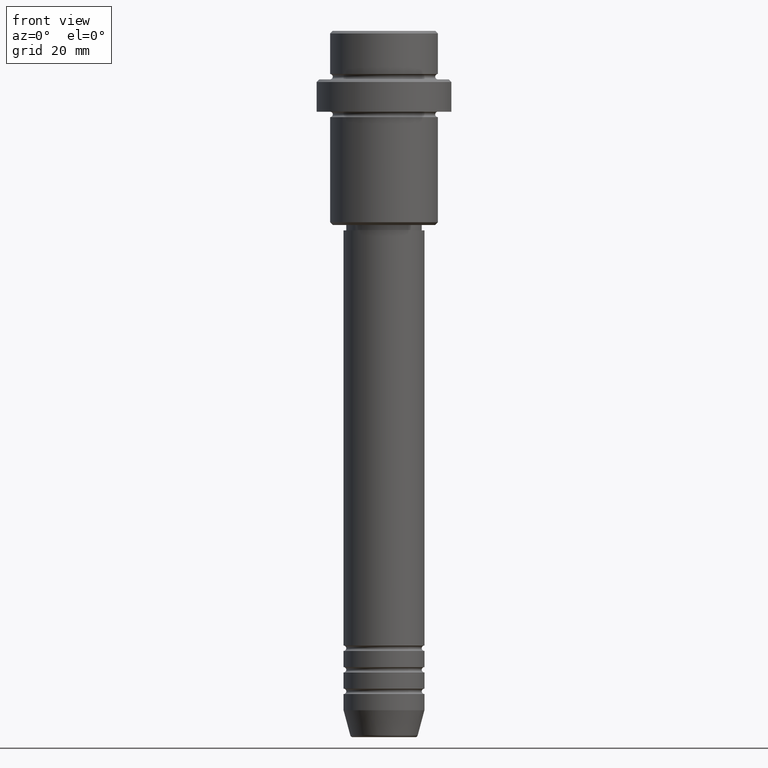
[diagram: clean part render]
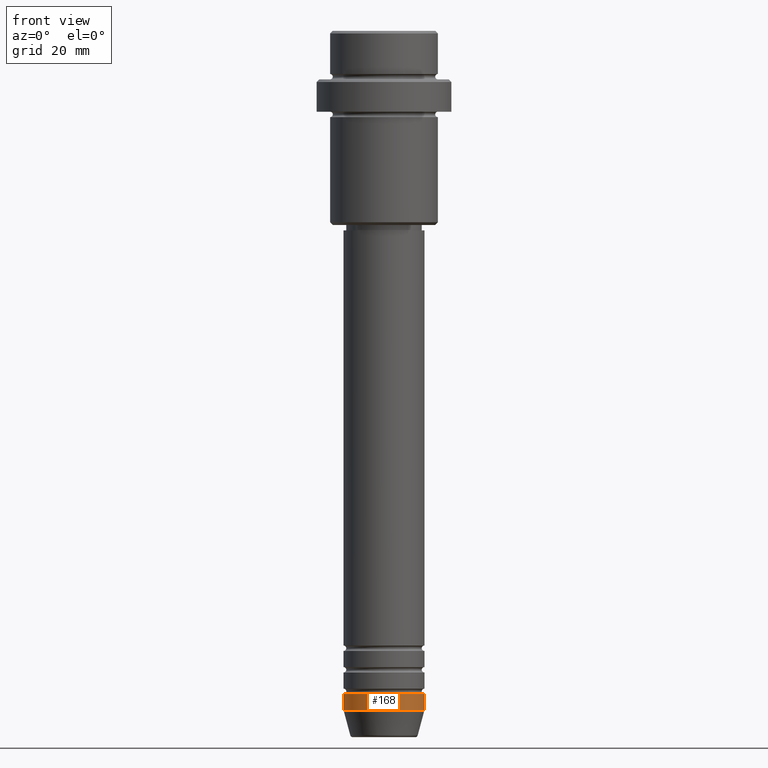
[diagram: same view with one face highlighted and labeled with its STEP entity id]
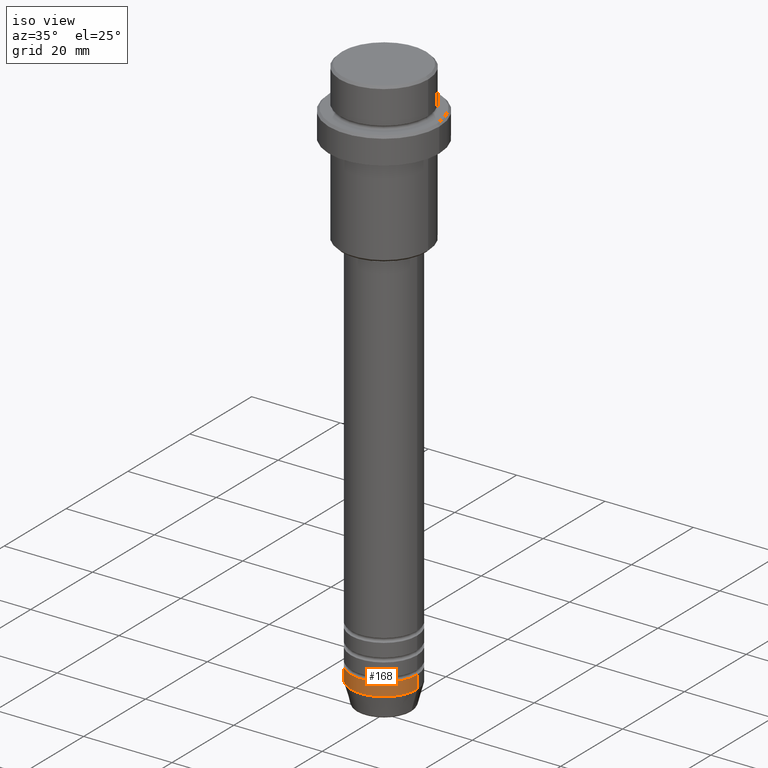
[diagram: same view with one face highlighted and labeled with its STEP entity id]
A machine part, front view. The second image highlights one B-rep face of the part: STEP entity #168.
A second angle (iso view) of the same face is appended — the face is thin or edge-on in the first view.
In plain terms, the highlighted cylindrical surface (partial cylindrical patch) has radius 7.5 mm, axis along (-0, -0, 1).
Its self-contained STEP definition (entity closure, byte-faithful):
#68 = DIRECTION ( 'NONE',  ( -0.000000000000000000, -0.000000000000000000, 1.000000000000000000 ) ) ;
#73 = DIRECTION ( 'NONE',  ( -0.000000000000000000, -0.000000000000000000, 1.000000000000000000 ) ) ;
#88 = EDGE_CURVE ( 'NONE', #450, #804, #1233, .T. ) ;
#159 = ORIENTED_EDGE ( 'NONE', *, *, #1110, .T. ) ;
#166 = CARTESIAN_POINT ( 'NONE',  ( -7.500000000000000000, 9.184850993605147944E-16, 0.000000000000000000 ) ) ;
#168 = ADVANCED_FACE ( 'NONE', ( #744 ), #1182, .T. ) ;
#174 = DIRECTION ( 'NONE',  ( 1.000000000000000000, 0.000000000000000000, 0.000000000000000000 ) ) ;
#181 = DIRECTION ( 'NONE',  ( 1.000000000000000000, 0.000000000000000000, 0.000000000000000000 ) ) ;
#258 = EDGE_LOOP ( 'NONE', ( #1056, #159, #780, #1389 ) ) ;
#283 = VECTOR ( 'NONE', #1151, 1000.000000000000000 ) ;
#310 = CARTESIAN_POINT ( 'NONE',  ( -7.500000000000000000, 9.184850993605147944E-16, -123.0000000000000000 ) ) ;
#312 = DIRECTION ( 'NONE',  ( -0.000000000000000000, -0.000000000000000000, 1.000000000000000000 ) ) ;
#333 = VECTOR ( 'NONE', #421, 1000.000000000000000 ) ;
#421 = DIRECTION ( 'NONE',  ( -0.000000000000000000, -0.000000000000000000, 1.000000000000000000 ) ) ;
#450 = VERTEX_POINT ( 'NONE', #1246 ) ;
#493 = CARTESIAN_POINT ( 'NONE',  ( 7.500000000000000000, 0.000000000000000000, -123.0000000000000000 ) ) ;
#520 = AXIS2_PLACEMENT_3D ( 'NONE', #537, #312, #959 ) ;
#537 = CARTESIAN_POINT ( 'NONE',  ( 0.000000000000000000, 0.000000000000000000, 0.000000000000000000 ) ) ;
#545 = VERTEX_POINT ( 'NONE', #493 ) ;
#579 = CARTESIAN_POINT ( 'NONE',  ( 7.500000000000000000, 0.000000000000000000, -126.0000000000000000 ) ) ;
#598 = LINE ( 'NONE', #924, #333 ) ;
#626 = CARTESIAN_POINT ( 'NONE',  ( 0.000000000000000000, 0.000000000000000000, -123.0000000000000000 ) ) ;
#675 = EDGE_CURVE ( 'NONE', #804, #545, #1152, .T. ) ;
#744 = FACE_OUTER_BOUND ( 'NONE', #258, .T. ) ;
#780 = ORIENTED_EDGE ( 'NONE', *, *, #1272, .T. ) ;
#792 = AXIS2_PLACEMENT_3D ( 'NONE', #1248, #68, #174 ) ;
#804 = VERTEX_POINT ( 'NONE', #310 ) ;
#924 = CARTESIAN_POINT ( 'NONE',  ( 7.500000000000000000, 0.000000000000000000, 0.000000000000000000 ) ) ;
#959 = DIRECTION ( 'NONE',  ( 1.000000000000000000, 0.000000000000000000, 0.000000000000000000 ) ) ;
#1046 = VERTEX_POINT ( 'NONE', #579 ) ;
#1056 = ORIENTED_EDGE ( 'NONE', *, *, #88, .F. ) ;
#1066 = CIRCLE ( 'NONE', #792, 7.500000000000000000 ) ;
#1083 = AXIS2_PLACEMENT_3D ( 'NONE', #626, #73, #181 ) ;
#1110 = EDGE_CURVE ( 'NONE', #450, #1046, #1066, .T. ) ;
#1151 = DIRECTION ( 'NONE',  ( -0.000000000000000000, -0.000000000000000000, 1.000000000000000000 ) ) ;
#1152 = CIRCLE ( 'NONE', #1083, 7.500000000000000000 ) ;
#1182 = CYLINDRICAL_SURFACE ( 'NONE', #520, 7.500000000000000000 ) ;
#1233 = LINE ( 'NONE', #166, #283 ) ;
#1246 = CARTESIAN_POINT ( 'NONE',  ( -7.500000000000000000, 9.184850993605147944E-16, -126.0000000000000000 ) ) ;
#1248 = CARTESIAN_POINT ( 'NONE',  ( 0.000000000000000000, 0.000000000000000000, -126.0000000000000000 ) ) ;
#1272 = EDGE_CURVE ( 'NONE', #1046, #545, #598, .T. ) ;
#1389 = ORIENTED_EDGE ( 'NONE', *, *, #675, .F. ) ;